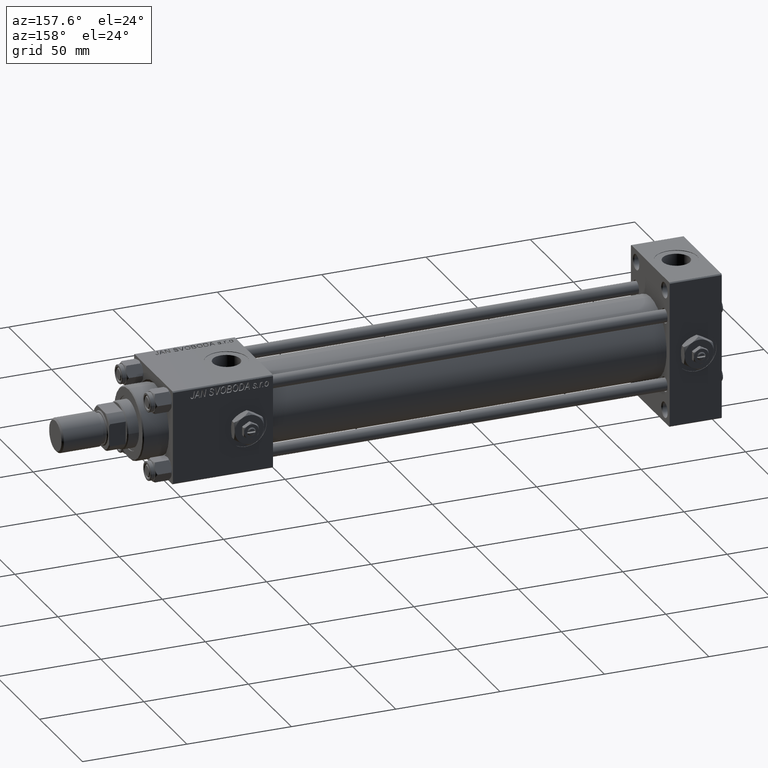
[diagram: clean part render]
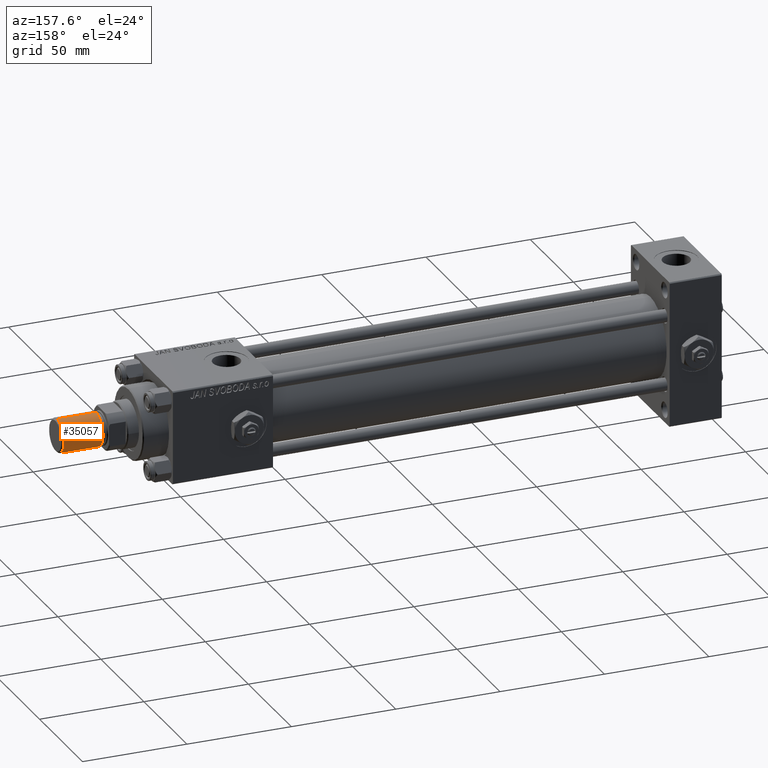
[diagram: same view with one face highlighted and labeled with its STEP entity id]
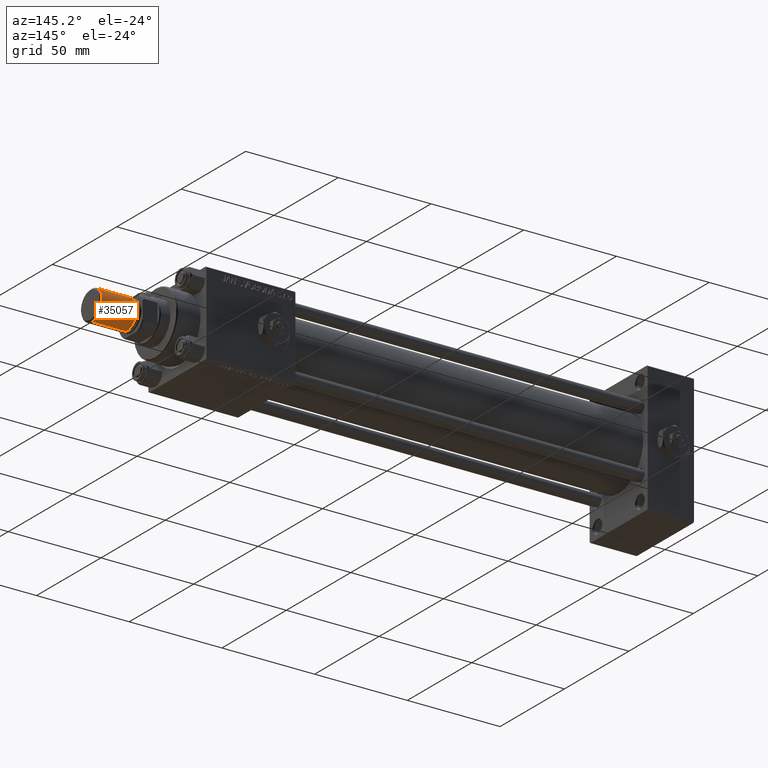
[diagram: same view with one face highlighted and labeled with its STEP entity id]
A machine part, auxiliary view. The second image highlights one B-rep face of the part: STEP entity #35057.
A second angle (auxiliary view) of the same face is appended — the face is thin or edge-on in the first view.
In plain terms, the highlighted cylindrical surface (edge-blend (fillet) strip) has radius 8 mm, axis along (1, -0, -0).
Its self-contained STEP definition (entity closure, byte-faithful):
#4 = VECTOR ( 'NONE', #17224, 1000.000000000000000 ) ;
#1415 = DIRECTION ( 'NONE',  ( 0.000000000000000000, 0.000000000000000000, 1.000000000000000000 ) ) ;
#1929 = ORIENTED_EDGE ( 'NONE', *, *, #29242, .F. ) ;
#1943 = CARTESIAN_POINT ( 'NONE',  ( 0.000000000000000000, 0.000000000000000000, 0.8000000000000090372 ) ) ;
#3955 = VERTEX_POINT ( 'NONE', #29183 ) ;
#4608 = VERTEX_POINT ( 'NONE', #26051 ) ;
#6273 = AXIS2_PLACEMENT_3D ( 'NONE', #13598, #1415, #25547 ) ;
#11109 = VERTEX_POINT ( 'NONE', #50742 ) ;
#13598 = CARTESIAN_POINT ( 'NONE',  ( 0.000000000000000000, 0.000000000000000000, 19.50000000000000000 ) ) ;
#14416 = VECTOR ( 'NONE', #23082, 1000.000000000000000 ) ;
#16235 = EDGE_CURVE ( 'NONE', #18240, #11109, #37645, .T. ) ;
#17224 = DIRECTION ( 'NONE',  ( -0.000000000000000000, -0.000000000000000000, -1.000000000000000000 ) ) ;
#17611 = EDGE_CURVE ( 'NONE', #3955, #4608, #18578, .T. ) ;
#18112 = DIRECTION ( 'NONE',  ( -0.000000000000000000, -0.000000000000000000, 1.000000000000000000 ) ) ;
#18240 = VERTEX_POINT ( 'NONE', #21330 ) ;
#18273 = CIRCLE ( 'NONE', #34362, 8.000000000000000000 ) ;
#18578 = LINE ( 'NONE', #30789, #14416 ) ;
#19764 = DIRECTION ( 'NONE',  ( -1.000000000000000000, 0.000000000000000000, 0.000000000000000000 ) ) ;
#19938 = ORIENTED_EDGE ( 'NONE', *, *, #37200, .T. ) ;
#21330 = CARTESIAN_POINT ( 'NONE',  ( -8.000000000000000000, 0.000000000000000000, 19.50000000000000000 ) ) ;
#23082 = DIRECTION ( 'NONE',  ( -0.000000000000000000, -0.000000000000000000, -1.000000000000000000 ) ) ;
#24006 = CARTESIAN_POINT ( 'NONE',  ( 0.000000000000000000, 0.000000000000000000, 19.50000000000000000 ) ) ;
#24909 = ORIENTED_EDGE ( 'NONE', *, *, #16235, .F. ) ;
#25547 = DIRECTION ( 'NONE',  ( 1.000000000000000000, 0.000000000000000000, 0.000000000000000000 ) ) ;
#26051 = CARTESIAN_POINT ( 'NONE',  ( 8.000000000000000000, 9.797174393178825657E-16, 0.8000000000000090372 ) ) ;
#28514 = FACE_OUTER_BOUND ( 'NONE', #45944, .T. ) ;
#29149 = CIRCLE ( 'NONE', #6273, 8.000000000000000000 ) ;
#29183 = CARTESIAN_POINT ( 'NONE',  ( 8.000000000000000000, 9.797174393178825657E-16, 19.50000000000000000 ) ) ;
#29242 = EDGE_CURVE ( 'NONE', #3955, #18240, #29149, .T. ) ;
#30789 = CARTESIAN_POINT ( 'NONE',  ( 8.000000000000000000, 9.797174393178825657E-16, 19.50000000000000000 ) ) ;
#31087 = ORIENTED_EDGE ( 'NONE', *, *, #17611, .T. ) ;
#34285 = AXIS2_PLACEMENT_3D ( 'NONE', #24006, #44426, #19764 ) ;
#34362 = AXIS2_PLACEMENT_3D ( 'NONE', #1943, #18112, #50478 ) ;
#35057 = ADVANCED_FACE ( 'NONE', ( #28514 ), #44164, .T. ) ;
#37200 = EDGE_CURVE ( 'NONE', #4608, #11109, #18273, .T. ) ;
#37645 = LINE ( 'NONE', #49067, #4 ) ;
#44164 = CYLINDRICAL_SURFACE ( 'NONE', #34285, 8.000000000000000000 ) ;
#44426 = DIRECTION ( 'NONE',  ( -0.000000000000000000, -0.000000000000000000, -1.000000000000000000 ) ) ;
#45944 = EDGE_LOOP ( 'NONE', ( #1929, #31087, #19938, #24909 ) ) ;
#49067 = CARTESIAN_POINT ( 'NONE',  ( -8.000000000000000000, 0.000000000000000000, 19.50000000000000000 ) ) ;
#50478 = DIRECTION ( 'NONE',  ( 1.000000000000000000, 0.000000000000000000, 0.000000000000000000 ) ) ;
#50742 = CARTESIAN_POINT ( 'NONE',  ( -8.000000000000000000, 0.000000000000000000, 0.8000000000000090372 ) ) ;